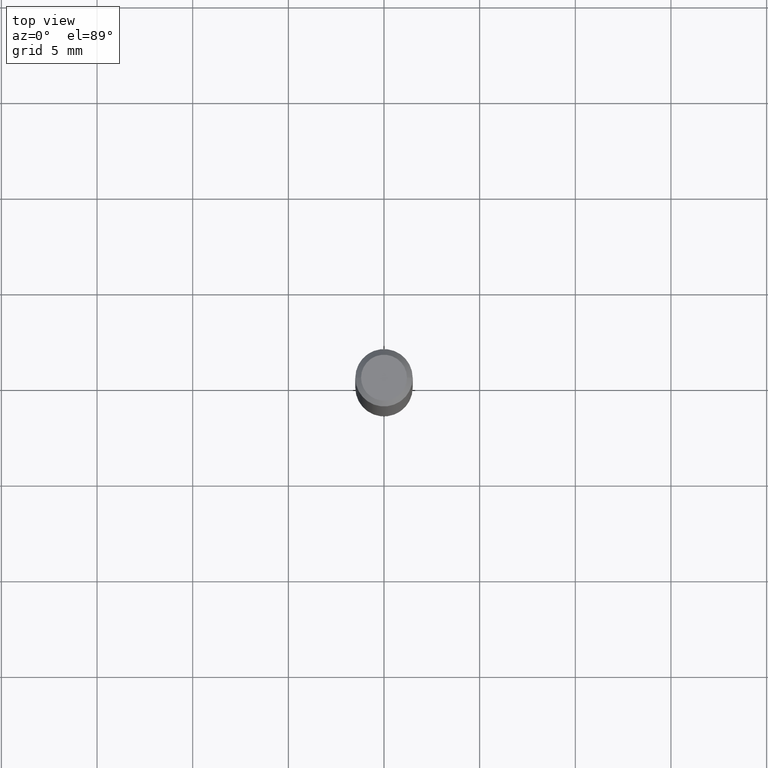
[diagram: clean part render]
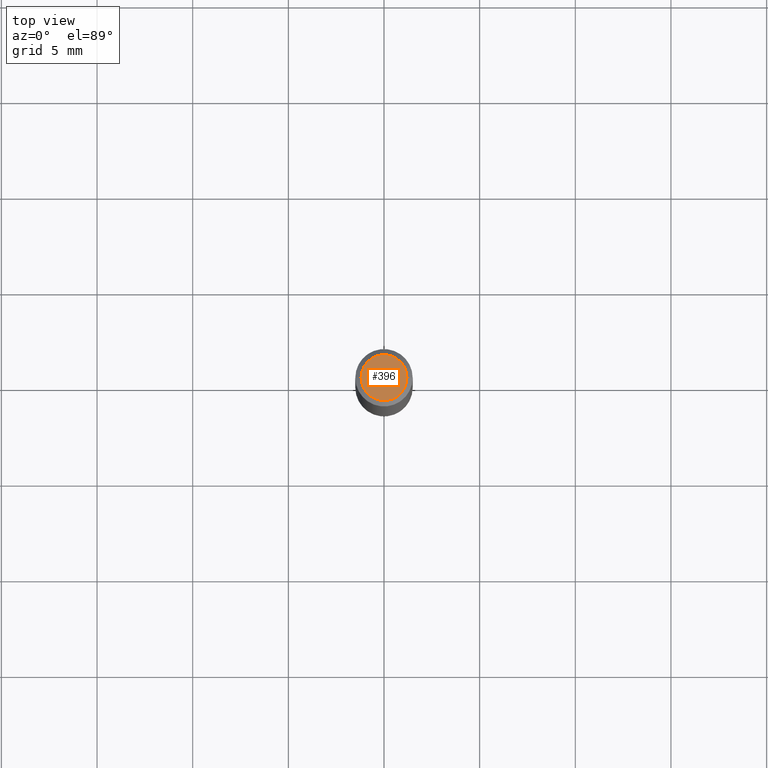
[diagram: same view with one face highlighted and labeled with its STEP entity id]
A machine part, top view. The second image highlights one B-rep face of the part: STEP entity #396.
In plain terms, the highlighted planar face has unit normal (0, -0, -1).
Its self-contained STEP definition (entity closure, byte-faithful):
#19 = EDGE_CURVE ( 'NONE', #433, #321, #377, .T. ) ;
#64 = EDGE_LOOP ( 'NONE', ( #317, #260 ) ) ;
#78 = DIRECTION ( 'NONE',  ( 1.000000000000000000, -6.982962677686266711E-15, 4.876185090822587894E-29 ) ) ;
#96 = DIRECTION ( 'NONE',  ( -1.000000000000000000, 6.982962677686265922E-15, -4.876176775795935793E-29 ) ) ;
#102 = FACE_OUTER_BOUND ( 'NONE', #64, .T. ) ;
#172 = DIRECTION ( 'NONE',  ( 1.000000000000000000, -6.982962677686266711E-15, 4.876185090822587894E-29 ) ) ;
#189 = CARTESIAN_POINT ( 'NONE',  ( 8.265746106709734507E-48, -1.180129479067563789E-33, -3.380025165646692144E-19 ) ) ;
#195 = AXIS2_PLACEMENT_3D ( 'NONE', #284, #437, #172 ) ;
#210 = AXIS2_PLACEMENT_3D ( 'NONE', #189, #407, #78 ) ;
#252 = PLANE ( 'NONE',  #453 ) ;
#260 = ORIENTED_EDGE ( 'NONE', *, *, #331, .T. ) ;
#264 = CIRCLE ( 'NONE', #195, 0.04724000000000000421 ) ;
#284 = CARTESIAN_POINT ( 'NONE',  ( 8.265746106709734507E-48, -1.180129479067563789E-33, -3.380025165646692144E-19 ) ) ;
#289 = CARTESIAN_POINT ( 'NONE',  ( 0.04724000000000000421, -3.852183633974369345E-16, -3.380025165621689721E-19 ) ) ;
#317 = ORIENTED_EDGE ( 'NONE', *, *, #19, .T. ) ;
#321 = VERTEX_POINT ( 'NONE', #289 ) ;
#331 = EDGE_CURVE ( 'NONE', #321, #433, #264, .T. ) ;
#359 = DIRECTION ( 'NONE',  ( 2.438088387897960049E-29, -3.491481338843145188E-15, -1.000000000000000000 ) ) ;
#372 = CARTESIAN_POINT ( 'NONE',  ( -0.04724000000000000421, 3.504923541997677355E-16, -3.380025165670481712E-19 ) ) ;
#377 = CIRCLE ( 'NONE', #210, 0.04724000000000000421 ) ;
#396 = ADVANCED_FACE ( 'NONE', ( #102 ), #252, .F. ) ;
#402 = CARTESIAN_POINT ( 'NONE',  ( 4.132873053354867254E-48, -5.900647395337818946E-34, -1.690012582823346072E-19 ) ) ;
#407 = DIRECTION ( 'NONE',  ( -2.445468806185136597E-29, 3.491481338843145583E-15, 1.000000000000000000 ) ) ;
#433 = VERTEX_POINT ( 'NONE', #372 ) ;
#437 = DIRECTION ( 'NONE',  ( -2.445468806185136597E-29, 3.491481338843145583E-15, 1.000000000000000000 ) ) ;
#453 = AXIS2_PLACEMENT_3D ( 'NONE', #402, #359, #96 ) ;